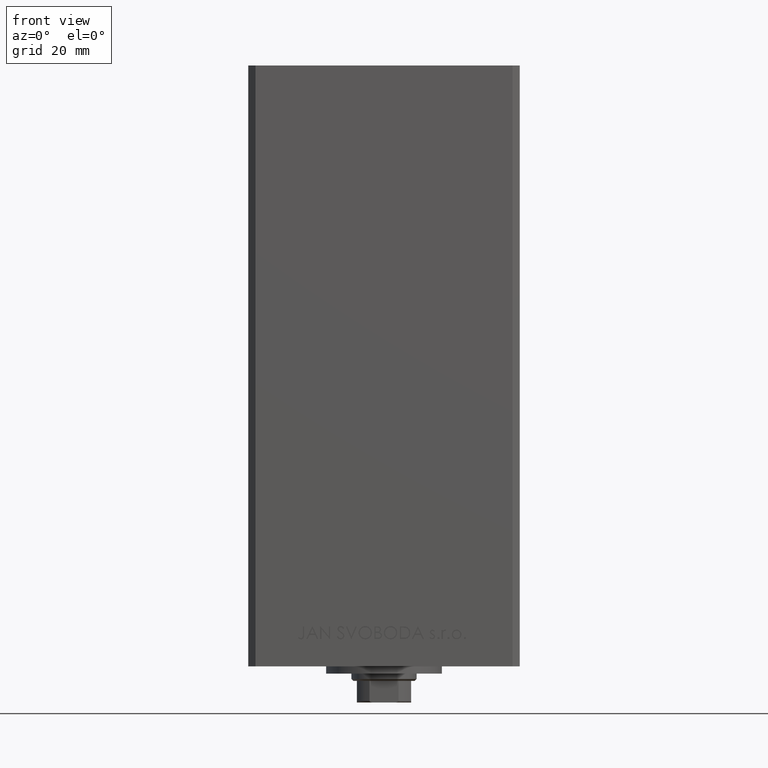
[diagram: clean part render]
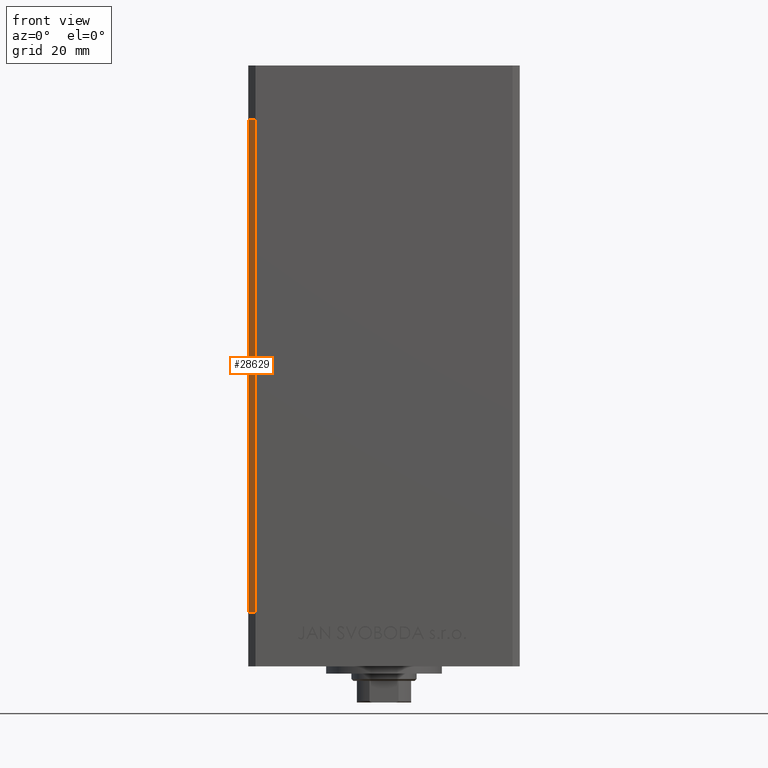
[diagram: same view with one face highlighted and labeled with its STEP entity id]
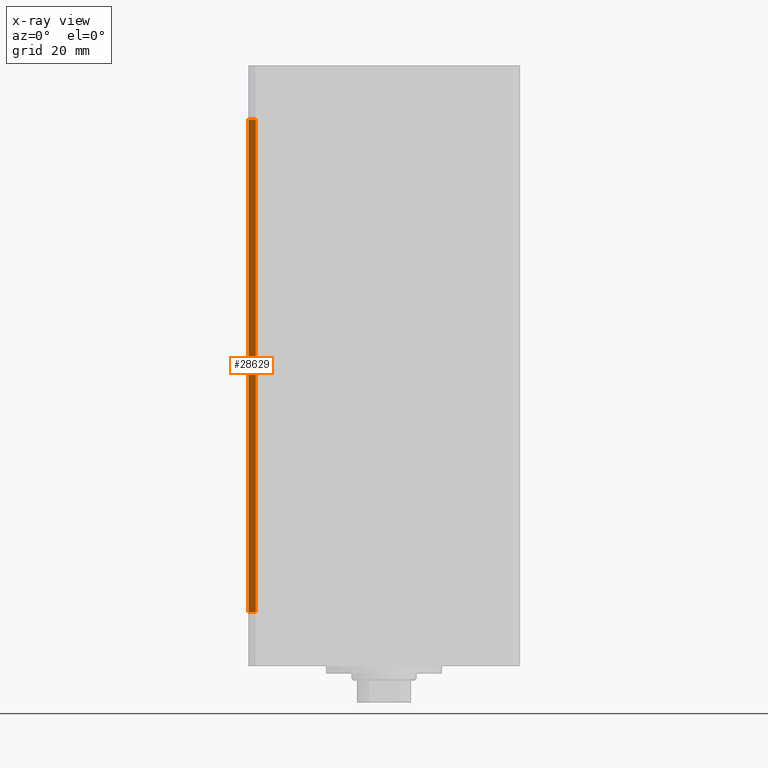
[diagram: x-ray of the same camera — body ghosted, the highlighted face saturated]
A machine part, front view. The second image highlights one B-rep face of the part: STEP entity #28629.
The next image is the same camera in x-ray: the body ghosted, the highlighted face saturated — about 0% of this face is hidden behind the body in this view.
In plain terms, the highlighted planar face has unit normal (0.7071, 0.7071, 0).
Its self-contained STEP definition (entity closure, byte-faithful):
#276 = DIRECTION ( 'NONE',  ( 0.7071067811865475727, 0.7071067811865475727, -0.000000000000000000 ) ) ;
#1379 = EDGE_CURVE ( 'NONE', #40556, #25054, #29135, .T. ) ;
#2733 = ORIENTED_EDGE ( 'NONE', *, *, #1379, .T. ) ;
#4226 = DIRECTION ( 'NONE',  ( -0.7071067811865474617, 0.7071067811865474617, 0.000000000000000000 ) ) ;
#4684 = DIRECTION ( 'NONE',  ( 0.7071067811865474617, -0.7071067811865474617, 0.000000000000000000 ) ) ;
#5225 = LINE ( 'NONE', #35424, #25335 ) ;
#8258 = VERTEX_POINT ( 'NONE', #22756 ) ;
#8446 = CARTESIAN_POINT ( 'NONE',  ( -37.49999999999999289, -30.50000000000000000, 136.0000000000000000 ) ) ;
#9415 = EDGE_CURVE ( 'NONE', #13092, #25054, #5225, .T. ) ;
#10745 = AXIS2_PLACEMENT_3D ( 'NONE', #33689, #276, #4226 ) ;
#13092 = VERTEX_POINT ( 'NONE', #46551 ) ;
#13591 = ORIENTED_EDGE ( 'NONE', *, *, #19531, .T. ) ;
#15338 = CARTESIAN_POINT ( 'NONE',  ( -37.49999999999999289, -30.50000000000000000, 136.0000000000000000 ) ) ;
#16113 = VECTOR ( 'NONE', #4684, 1000.000000000000114 ) ;
#19531 = EDGE_CURVE ( 'NONE', #8258, #40556, #27022, .T. ) ;
#21222 = DIRECTION ( 'NONE',  ( 0.7071067811865474617, -0.7071067811865474617, 0.000000000000000000 ) ) ;
#21392 = VECTOR ( 'NONE', #21222, 1000.000000000000114 ) ;
#22756 = CARTESIAN_POINT ( 'NONE',  ( -37.49999999999999289, -30.50000000000000000, 136.0000000000000000 ) ) ;
#23744 = ORIENTED_EDGE ( 'NONE', *, *, #42134, .F. ) ;
#24202 = EDGE_LOOP ( 'NONE', ( #2733, #36899, #23744, #13591 ) ) ;
#24715 = CARTESIAN_POINT ( 'NONE',  ( -35.49999999999999289, -32.50000000000000000, 0.000000000000000000 ) ) ;
#25054 = VERTEX_POINT ( 'NONE', #24715 ) ;
#25335 = VECTOR ( 'NONE', #46547, 1000.000000000000000 ) ;
#27022 = LINE ( 'NONE', #8446, #36558 ) ;
#28629 = ADVANCED_FACE ( 'NONE', ( #30696 ), #45296, .F. ) ;
#29135 = LINE ( 'NONE', #43983, #21392 ) ;
#30696 = FACE_OUTER_BOUND ( 'NONE', #24202, .T. ) ;
#33286 = CARTESIAN_POINT ( 'NONE',  ( -37.49999999999999289, -30.50000000000000000, 0.000000000000000000 ) ) ;
#33689 = CARTESIAN_POINT ( 'NONE',  ( -37.49999999999999289, -30.50000000000000000, 136.0000000000000000 ) ) ;
#35424 = CARTESIAN_POINT ( 'NONE',  ( -35.49999999999999289, -32.50000000000000000, 136.0000000000000000 ) ) ;
#36558 = VECTOR ( 'NONE', #42825, 1000.000000000000000 ) ;
#36899 = ORIENTED_EDGE ( 'NONE', *, *, #9415, .F. ) ;
#38606 = LINE ( 'NONE', #15338, #16113 ) ;
#40556 = VERTEX_POINT ( 'NONE', #33286 ) ;
#42134 = EDGE_CURVE ( 'NONE', #8258, #13092, #38606, .T. ) ;
#42825 = DIRECTION ( 'NONE',  ( -0.000000000000000000, -0.000000000000000000, -1.000000000000000000 ) ) ;
#43983 = CARTESIAN_POINT ( 'NONE',  ( -37.49999999999999289, -30.50000000000000000, 0.000000000000000000 ) ) ;
#45296 = PLANE ( 'NONE',  #10745 ) ;
#46547 = DIRECTION ( 'NONE',  ( -0.000000000000000000, -0.000000000000000000, -1.000000000000000000 ) ) ;
#46551 = CARTESIAN_POINT ( 'NONE',  ( -35.49999999999999289, -32.50000000000000000, 136.0000000000000000 ) ) ;